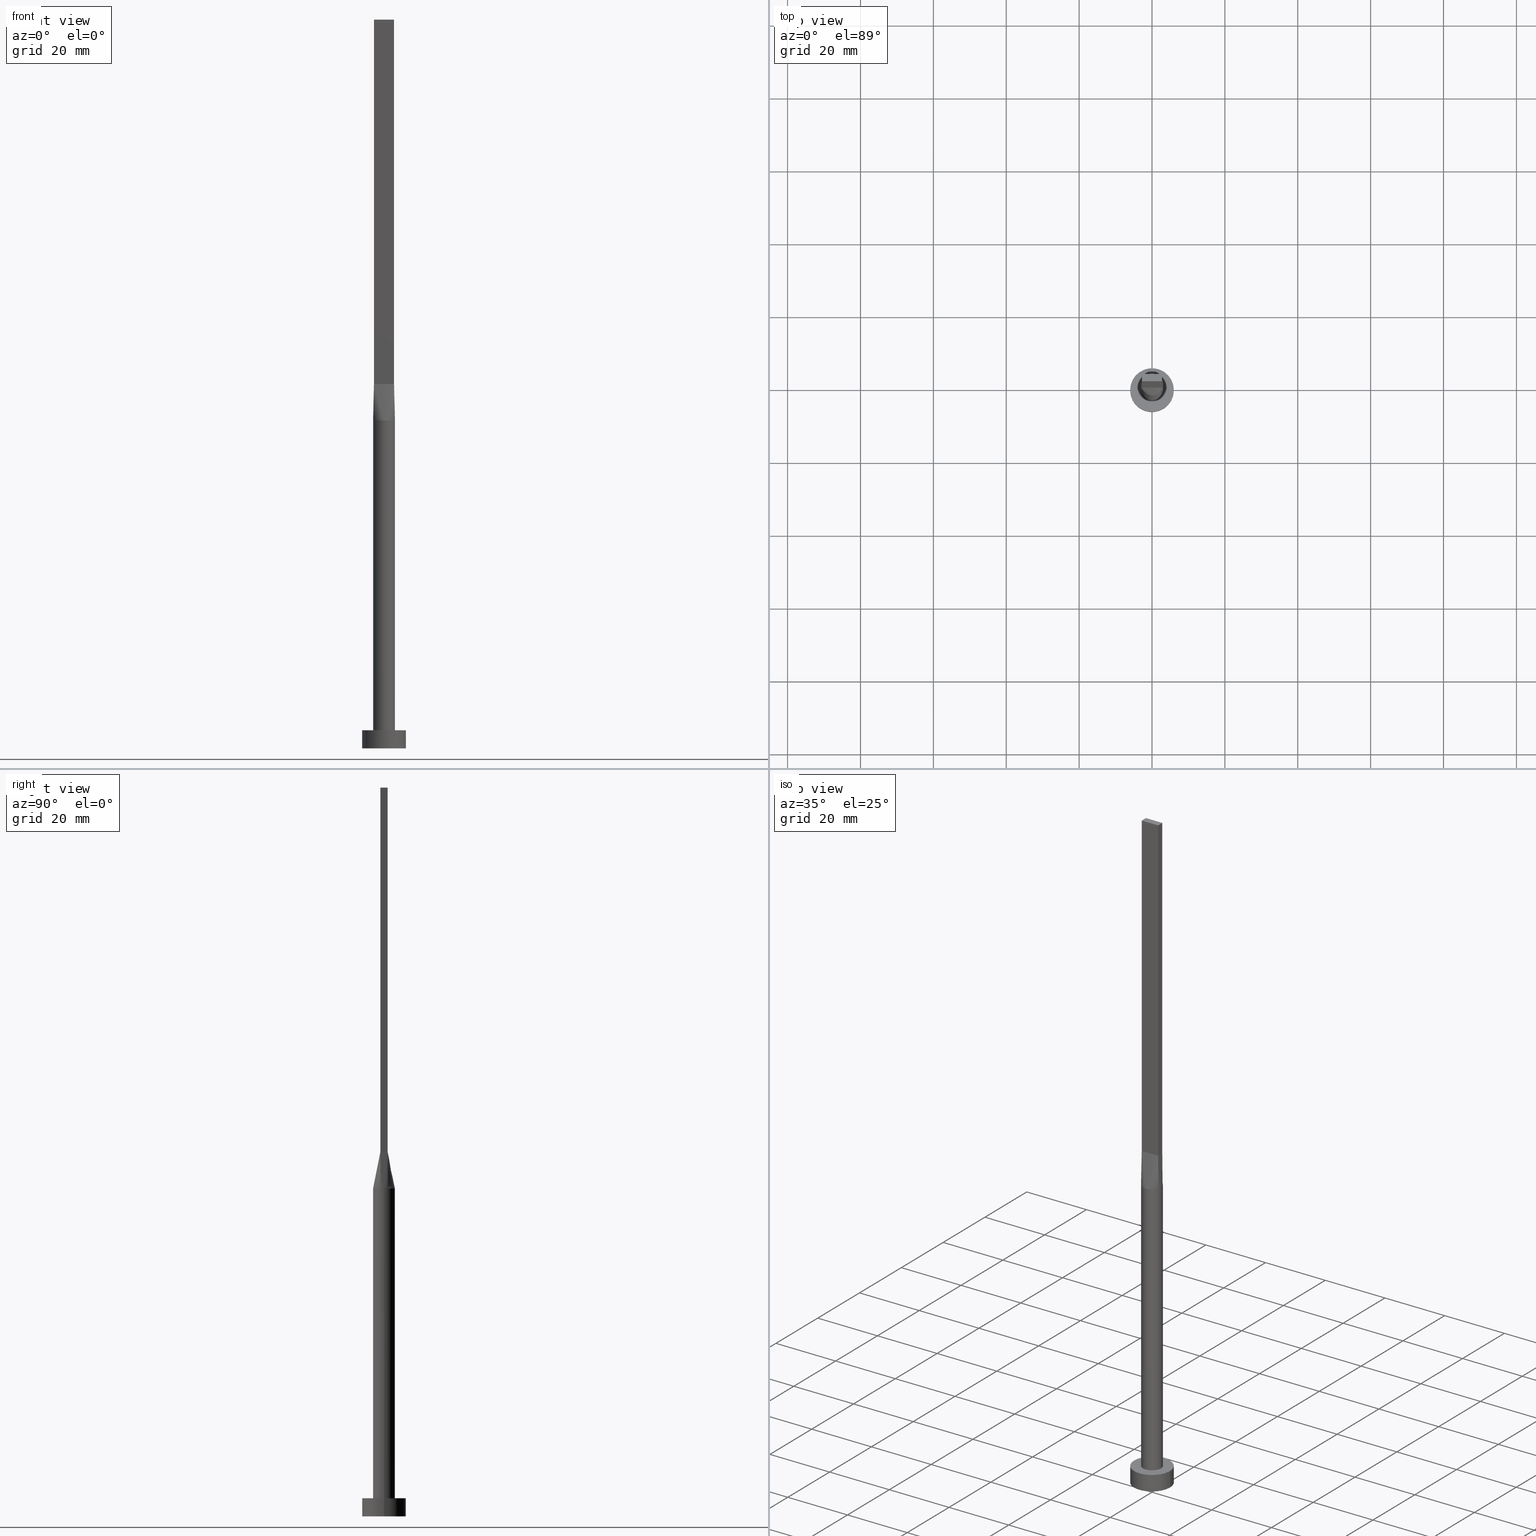
[diagram: canonical four-view strip — front | top / right | iso, engineering-drawing reading convention]
A machine part, canonical four-view strip (front | top / right | iso — engineering-drawing reading convention). The complete STEP part file that produces these views, byte-faithful:
ISO-10303-21;
HEADER;
FILE_DESCRIPTION (( 'STEP AP203' ),
    '1' );
FILE_NAME ('2b01.STEP',
    '2023-02-13T10:27:13',
    ( '' ),
    ( '' ),
    'SwSTEP 2.0',
    'SolidWorks 2019',
    '' );
FILE_SCHEMA (( 'CONFIG_CONTROL_DESIGN' ));
ENDSEC;

DATA;
#1 = CARTESIAN_POINT ( 'NONE',  ( -1.833333333333333037, -0.9999999999999995559, 100.0000000000000000 ) ) ;
#2 = VERTEX_POINT ( 'NONE', #502 ) ;
#3 = DIRECTION ( 'NONE',  ( 0.000000000000000000, 0.000000000000000000, 1.000000000000000000 ) ) ;
#4 = AXIS2_PLACEMENT_3D ( 'NONE', #381, #330, #169 ) ;
#5 = CARTESIAN_POINT ( 'NONE',  ( 3.000000000000000444, 3.673940397442060361E-16, 5.000000000000000000 ) ) ;
#6 = CC_DESIGN_PERSON_AND_ORGANIZATION_ASSIGNMENT ( #75, #323, ( #273 ) ) ;
#7 = CARTESIAN_POINT ( 'NONE',  ( 0.000000000000000000, 0.000000000000000000, 0.000000000000000000 ) ) ;
#8 = CARTESIAN_POINT ( 'NONE',  ( -3.000000000000000444, 0.3523499553598127276, 90.00000000000001421 ) ) ;
#9 = DIRECTION ( 'NONE',  ( 7.885106708985487801E-17, 1.000000000000000000, -0.000000000000000000 ) ) ;
#10 = ORIENTED_EDGE ( 'NONE', *, *, #469, .F. ) ;
#11 = CARTESIAN_POINT ( 'NONE',  ( -2.749999999999999556, 1.000000000000000000, 100.0000000000000000 ) ) ;
#12 = CARTESIAN_POINT ( 'NONE',  ( 2.819380270465311700, 1.025229189260112639, 90.00000000000001421 ) ) ;
#13 = CARTESIAN_POINT ( 'NONE',  ( -1.145833333333333259, -0.9999999999999995559, 100.0000000000000142 ) ) ;
#14 = CIRCLE ( 'NONE', #71, 3.000000000000000444 ) ;
#15 = AXIS2_PLACEMENT_3D ( 'NONE', #46, #306, #79 ) ;
#16 = DIRECTION ( 'NONE',  ( 1.000000000000000000, -7.885106708985487801E-17, 0.000000000000000000 ) ) ;
#17 = VECTOR ( 'NONE', #16, 1000.000000000000000 ) ;
#18 = DIRECTION ( 'NONE',  ( 0.000000000000000000, 0.000000000000000000, 1.000000000000000000 ) ) ;
#19 = CARTESIAN_POINT ( 'NONE',  ( 2.314486317179579533, -1.928337902455807606, 90.00000000000002842 ) ) ;
#20 = DIRECTION ( 'NONE',  ( -0.006937837988376369981, 0.002522850177591328454, 0.9999727504442450510 ) ) ;
#21 = LOCAL_TIME ( 11, 27, 13.00000000000000000, #256 ) ;
#22 = DIRECTION ( 'NONE',  ( 1.000000000000000000, 0.000000000000000000, 0.000000000000000000 ) ) ;
#23 = CARTESIAN_POINT ( 'NONE',  ( 0.000000000000000000, 0.000000000000000000, 90.00000000000001421 ) ) ;
#24 = EDGE_CURVE ( 'NONE', #445, #382, #97, .T. ) ;
#25 = CARTESIAN_POINT ( 'NONE',  ( -2.625980160873452096, 1.476334031700886396, 90.00000000000001421 ) ) ;
#26 = CARTESIAN_POINT ( 'NONE',  ( -2.784690135232655628, 1.012614594630056430, 95.00000000000000000 ) ) ;
#27 = CARTESIAN_POINT ( 'NONE',  ( -0.9166666666666644092, 1.000000000000000000, 100.0000000000000000 ) ) ;
#28 = FACE_OUTER_BOUND ( 'NONE', #215, .T. ) ;
#29 = ORIENTED_EDGE ( 'NONE', *, *, #55, .T. ) ;
#30 = EDGE_LOOP ( 'NONE', ( #99, #577, #439, #69 ) ) ;
#31 = CARTESIAN_POINT ( 'NONE',  ( 0.9166666666666685170, 1.000000000000000000, 100.0000000000000000 ) ) ;
#32 = EDGE_CURVE ( 'NONE', #519, #377, #242, .T. ) ;
#33 = ORIENTED_EDGE ( 'NONE', *, *, #443, .F. ) ;
#34 = DATE_TIME_ROLE ( 'classification_date' ) ;
#35 = CARTESIAN_POINT ( 'NONE',  ( -1.145833333333331261, 1.000000000000000000, 100.0000000000000000 ) ) ;
#36 = PLANE ( 'NONE',  #536 ) ;
#37 = LINE ( 'NONE', #433, #258 ) ;
#38 = DATE_TIME_ROLE ( 'creation_date' ) ;
#39 = CARTESIAN_POINT ( 'NONE',  ( 2.749999999999999556, 1.000000000000000000, 100.0000000000000000 ) ) ;
#40 = CARTESIAN_POINT ( 'NONE',  ( 0.3502136323054376721, 3.000000000000000444, 90.00000000000001421 ) ) ;
#41 = EDGE_LOOP ( 'NONE', ( #527, #118, #353, #403 ) ) ;
#42 = EDGE_CURVE ( 'NONE', #479, #2, #329, .T. ) ;
#43 = DIRECTION ( 'NONE',  ( -0.000000000000000000, -0.000000000000000000, -1.000000000000000000 ) ) ;
#44 = CARTESIAN_POINT ( 'NONE',  ( -1.338960936578150518, -2.706038443291638007, 90.00000000000001421 ) ) ;
#45 = ORIENTED_EDGE ( 'NONE', *, *, #59, .F. ) ;
#46 = CARTESIAN_POINT ( 'NONE',  ( 0.000000000000000000, 0.000000000000000000, 0.000000000000000000 ) ) ;
#47 = CARTESIAN_POINT ( 'NONE',  ( 1.145833333333333259, -0.9999999999999995559, 100.0000000000000000 ) ) ;
#48 = ADVANCED_FACE ( 'NONE', ( #508 ), #556, .F. ) ;
#49 = CC_DESIGN_APPROVAL ( #342, ( #554 ) ) ;
#50 = DIRECTION ( 'NONE',  ( -2.168404344971008868E-16, 1.000000000000000000, 0.000000000000000000 ) ) ;
#51 = CARTESIAN_POINT ( 'NONE',  ( 0.000000000000000000, 0.000000000000000000, 0.000000000000000000 ) ) ;
#52 = CARTESIAN_POINT ( 'NONE',  ( -2.750000000000000000, -0.9999999999999991118, 100.0000000000000000 ) ) ;
#53 = VERTEX_POINT ( 'NONE', #57 ) ;
#54 = DIRECTION ( 'NONE',  ( -0.000000000000000000, -0.000000000000000000, -1.000000000000000000 ) ) ;
#55 = EDGE_CURVE ( 'NONE', #478, #83, #261, .T. ) ;
#56 = CARTESIAN_POINT ( 'NONE',  ( 2.739088299662391979, -1.246032108968142982, 90.00000000000001421 ) ) ;
#57 = CARTESIAN_POINT ( 'NONE',  ( 3.000000000000000444, 7.514166843208536743E-18, 90.00000000000001421 ) ) ;
#58 = LINE ( 'NONE', #511, #310 ) ;
#59 = EDGE_CURVE ( 'NONE', #377, #382, #283, .T. ) ;
#60 = DIRECTION ( 'NONE',  ( 0.000000000000000000, -1.000000000000000000, 0.000000000000000000 ) ) ;
#61 = APPROVAL_ROLE ( '' ) ;
#62 = VECTOR ( 'NONE', #303, 1000.000000000000000 ) ;
#63 = CARTESIAN_POINT ( 'NONE',  ( -1.627925520694712747, 2.539128397820341831, 90.00000000000000000 ) ) ;
#64 = CARTESIAN_POINT ( 'NONE',  ( 1.604166666666668073, 1.000000000000000000, 100.0000000000000000 ) ) ;
#65 = CARTESIAN_POINT ( 'NONE',  ( -1.627925520694712747, 2.539128397820341831, 90.00000000000000000 ) ) ;
#66 = ORIENTED_EDGE ( 'NONE', *, *, #185, .F. ) ;
#67 = ADVANCED_FACE ( 'NONE', ( #197 ), #143, .T. ) ;
#68 = ORIENTED_EDGE ( 'NONE', *, *, #487, .F. ) ;
#69 = ORIENTED_EDGE ( 'NONE', *, *, #462, .T. ) ;
#70 = CARTESIAN_POINT ( 'NONE',  ( 2.314486317179579977, 1.928337902455807384, 90.00000000000002842 ) ) ;
#71 = AXIS2_PLACEMENT_3D ( 'NONE', #264, #351, #538 ) ;
#72 = VECTOR ( 'NONE', #302, 1000.000000000000000 ) ;
#73 = VERTEX_POINT ( 'NONE', #101 ) ;
#74 = LINE ( 'NONE', #262, #189 ) ;
#75 = PERSON_AND_ORGANIZATION ( #441, #92 ) ;
#76 = CARTESIAN_POINT ( 'NONE',  ( -2.819429393986302657, 1.025247261300842760, 90.00000000000001421 ) ) ;
#77 = DIRECTION ( 'NONE',  ( -1.000000000000000000, 0.000000000000000000, 0.000000000000000000 ) ) ;
#78 = FACE_OUTER_BOUND ( 'NONE', #292, .T. ) ;
#79 = DIRECTION ( 'NONE',  ( 1.000000000000000000, 0.000000000000000000, 0.000000000000000000 ) ) ;
#80 = CC_DESIGN_DATE_AND_TIME_ASSIGNMENT ( #387, #34, ( #273 ) ) ;
#81 = CARTESIAN_POINT ( 'NONE',  ( -2.520833333333332593, 1.000000000000000000, 100.0000000000000000 ) ) ;
#82 = CARTESIAN_POINT ( 'NONE',  ( -0.4583333333333333703, -0.9999999999999995559, 100.0000000000000142 ) ) ;
#83 = VERTEX_POINT ( 'NONE', #238 ) ;
#84 = B_SPLINE_CURVE_WITH_KNOTS ( 'NONE', 3,
 ( #376, #320, #514, #105, #107, #287, #473, #165, #40, #521, #385, #525, #65, #122, #489, #567, #254, #76 ),
 .UNSPECIFIED., .F., .F.,
 ( 4, 2, 2, 2, 2, 2, 2, 2, 4 ),
 ( 0.000000000000000000, 0.1249999999999998890, 0.2499999999999997780, 0.3749999999999997780, 0.4999999999999997780, 0.6249999999999997780, 0.7499999999999997780, 0.8749999999999998890, 1.000000000000000000 ),
 .UNSPECIFIED. ) ;
#85 = CARTESIAN_POINT ( 'NONE',  ( -2.819380270465311700, -1.025229189260111973, 90.00000000000001421 ) ) ;
#86 = VERTEX_POINT ( 'NONE', #317 ) ;
#87 = EDGE_CURVE ( 'NONE', #83, #478, #227, .T. ) ;
#88 = FACE_OUTER_BOUND ( 'NONE', #296, .T. ) ;
#89 = CARTESIAN_POINT ( 'NONE',  ( -3.000000000000000444, -0.3523499553598117839, 90.00000000000001421 ) ) ;
#90 = CARTESIAN_POINT ( 'NONE',  ( -2.749999999999999556, 1.000000000000000000, 200.0000000000000000 ) ) ;
#91 = CIRCLE ( 'NONE', #284, 6.000000000000000888 ) ;
#92 = ORGANIZATION ( 'NEUR�EN�', 'NEUR�EN�', '' ) ;
#93 = LINE ( 'NONE', #364, #125 ) ;
#94 = CARTESIAN_POINT ( 'NONE',  ( -2.291666666666666519, -0.9999999999999995559, 100.0000000000000000 ) ) ;
#95 = EDGE_LOOP ( 'NONE', ( #211, #551, #572, #344 ) ) ;
#96 = DIRECTION ( 'NONE',  ( -0.000000000000000000, -0.000000000000000000, -1.000000000000000000 ) ) ;
#97 = LINE ( 'NONE', #236, #269 ) ;
#98 = LINE ( 'NONE', #466, #512 ) ;
#99 = ORIENTED_EDGE ( 'NONE', *, *, #171, .T. ) ;
#100 = AXIS2_PLACEMENT_3D ( 'NONE', #102, #560, #426 ) ;
#101 = CARTESIAN_POINT ( 'NONE',  ( -2.749999999999999556, 1.000000000000000000, 100.0000000000000000 ) ) ;
#102 = CARTESIAN_POINT ( 'NONE',  ( 0.000000000000000000, 0.000000000000000000, 5.000000000000000000 ) ) ;
#103 = EDGE_CURVE ( 'NONE', #73, #235, #415, .T. ) ;
#104 = CARTESIAN_POINT ( 'NONE',  ( -2.749999999999999556, 1.000000000000000000, 100.0000000000000000 ) ) ;
#105 = CARTESIAN_POINT ( 'NONE',  ( 2.314486317179579977, 1.928337902455807384, 90.00000000000002842 ) ) ;
#106 = CARTESIAN_POINT ( 'NONE',  ( -0.6998073349918608743, 2.936959335800557014, 90.00000000000000000 ) ) ;
#107 = CARTESIAN_POINT ( 'NONE',  ( 2.115507543051069916, 2.149870311632976705, 90.00000000000001421 ) ) ;
#108 = ORIENTED_EDGE ( 'NONE', *, *, #581, .T. ) ;
#109 = VECTOR ( 'NONE', #228, 1000.000000000000000 ) ;
#110 = CARTESIAN_POINT ( 'NONE',  ( 1.145833333333335036, 1.000000000000000000, 100.0000000000000000 ) ) ;
#111 = ORIENTED_EDGE ( 'NONE', *, *, #289, .T. ) ;
#112 = DATE_AND_TIME ( #328, #121 ) ;
#113 = VERTEX_POINT ( 'NONE', #504 ) ;
#114 = ORIENTED_EDGE ( 'NONE', *, *, #487, .T. ) ;
#115 = CC_DESIGN_PERSON_AND_ORGANIZATION_ASSIGNMENT ( #400, #349, ( #510 ) ) ;
#116 = CARTESIAN_POINT ( 'NONE',  ( 2.520833333333333037, 1.000000000000000000, 100.0000000000000000 ) ) ;
#117 = ORIENTED_EDGE ( 'NONE', *, *, #571, .T. ) ;
#118 = ORIENTED_EDGE ( 'NONE', *, *, #150, .F. ) ;
#119 = CARTESIAN_POINT ( 'NONE',  ( -0.3502136323054376721, 2.999999999999999112, 90.00000000000002842 ) ) ;
#120 = VECTOR ( 'NONE', #492, 1000.000000000000000 ) ;
#121 = LOCAL_TIME ( 11, 27, 13.00000000000000000, #159 ) ;
#122 = CARTESIAN_POINT ( 'NONE',  ( -2.115507543051069916, 2.149870311632977593, 90.00000000000001421 ) ) ;
#123 = PERSON_AND_ORGANIZATION_ROLE ( 'design_supplier' ) ;
#124 = CARTESIAN_POINT ( 'NONE',  ( -2.784690135232656072, -1.012614594630055764, 95.00000000000000000 ) ) ;
#125 = VECTOR ( 'NONE', #77, 1000.000000000000000 ) ;
#126 = EDGE_CURVE ( 'NONE', #519, #235, #98, .T. ) ;
#127 = ORIENTED_EDGE ( 'NONE', *, *, #366, .T. ) ;
#128 = CARTESIAN_POINT ( 'NONE',  ( -0.6998073349918614294, -2.936959335800558346, 90.00000000000001421 ) ) ;
#129 = ORIENTED_EDGE ( 'NONE', *, *, #450, .T. ) ;
#130 = DIRECTION ( 'NONE',  ( -1.000000000000000000, 7.885106708985487801E-17, 0.000000000000000000 ) ) ;
#131 = ADVANCED_FACE ( 'NONE', ( #368 ), #501, .T. ) ;
#132 = DIRECTION ( 'NONE',  ( 0.000000000000000000, 0.000000000000000000, 1.000000000000000000 ) ) ;
#133 = CARTESIAN_POINT ( 'NONE',  ( -2.314486317179578645, -1.928337902455806496, 90.00000000000001421 ) ) ;
#134 = EDGE_LOOP ( 'NONE', ( #322, #114, #528, #33 ) ) ;
#135 = CARTESIAN_POINT ( 'NONE',  ( -2.749999999999999556, 0.3333333333333337034, 100.0000000000000000 ) ) ;
#136 = LINE ( 'NONE', #90, #62 ) ;
#137 = ORIENTED_EDGE ( 'NONE', *, *, #436, .F. ) ;
#138 = COORDINATED_UNIVERSAL_TIME_OFFSET ( 1, 0, .AHEAD. ) ;
#139 = AXIS2_PLACEMENT_3D ( 'NONE', #234, #9, #130 ) ;
#140 = CC_DESIGN_SECURITY_CLASSIFICATION ( #273, ( #409 ) ) ;
#141 = ADVANCED_BREP_SHAPE_REPRESENTATION ( '2b01', ( #465, #15 ), #187 ) ;
#142 = EDGE_CURVE ( 'NONE', #235, #224, #399, .T. ) ;
#143 = CYLINDRICAL_SURFACE ( 'NONE', #354, 3.000000000000000444 ) ;
#144 = CARTESIAN_POINT ( 'NONE',  ( 2.520833333333333037, -0.9999999999999995559, 100.0000000000000000 ) ) ;
#145 = ORIENTED_EDGE ( 'NONE', *, *, #185, .T. ) ;
#146 = CARTESIAN_POINT ( 'NONE',  ( 2.819380270465311700, 1.025229189260113083, 90.00000000000001421 ) ) ;
#147 = CARTESIAN_POINT ( 'NONE',  ( 2.749999999999999556, 1.000000000000000000, 200.0000000000000000 ) ) ;
#148 = VECTOR ( 'NONE', #50, 1000.000000000000000 ) ;
#149 = CC_DESIGN_APPROVAL ( #518, ( #273 ) ) ;
#150 = EDGE_CURVE ( 'NONE', #333, #172, #579, .T. ) ;
#151 = CARTESIAN_POINT ( 'NONE',  ( 2.750000000000000000, -0.9999999999999997780, 200.0000000000000000 ) ) ;
#152 = PRODUCT_DEFINITION_SHAPE ( 'NONE', 'NONE',  #554 ) ;
#153 = CARTESIAN_POINT ( 'NONE',  ( -2.749999999999999556, 1.000000000000000000, 200.0000000000000000 ) ) ;
#154 = DIRECTION ( 'NONE',  ( -0.000000000000000000, -0.000000000000000000, -1.000000000000000000 ) ) ;
#155 = CARTESIAN_POINT ( 'NONE',  ( 0.000000000000000000, 0.000000000000000000, 5.000000000000000000 ) ) ;
#156 = CARTESIAN_POINT ( 'NONE',  ( -6.000000000000000888, 0.000000000000000000, 5.000000000000000000 ) ) ;
#157 = VERTEX_POINT ( 'NONE', #220 ) ;
#158 = DIRECTION ( 'NONE',  ( 0.000000000000000000, 0.000000000000000000, 1.000000000000000000 ) ) ;
#159 = COORDINATED_UNIVERSAL_TIME_OFFSET ( 1, 0, .AHEAD. ) ;
#160 = CIRCLE ( 'NONE', #509, 3.000000000000000444 ) ;
#161 = ADVANCED_FACE ( 'NONE', ( #78 ), #416, .T. ) ;
#162 = AXIS2_PLACEMENT_3D ( 'NONE', #280, #319, #559 ) ;
#163 = ORIENTED_EDGE ( 'NONE', *, *, #42, .F. ) ;
#164 = DATE_AND_TIME ( #384, #476 ) ;
#165 = CARTESIAN_POINT ( 'NONE',  ( 0.6998073349918605413, 2.936959335800557014, 89.99999999999997158 ) ) ;
#166 = EDGE_LOOP ( 'NONE', ( #176, #117, #455, #576, #545 ) ) ;
#167 = VERTEX_POINT ( 'NONE', #499 ) ;
#168 = CARTESIAN_POINT ( 'NONE',  ( -1.833333333333331261, 1.000000000000000000, 100.0000000000000000 ) ) ;
#169 = DIRECTION ( 'NONE',  ( 1.000000000000000000, 0.000000000000000000, -0.000000000000000000 ) ) ;
#170 = CARTESIAN_POINT ( 'NONE',  ( -2.750000000000000000, -0.3333333333333326487, 100.0000000000000000 ) ) ;
#171 = EDGE_CURVE ( 'NONE', #333, #391, #93, .T. ) ;
#172 = VERTEX_POINT ( 'NONE', #39 ) ;
#173 = CARTESIAN_POINT ( 'NONE',  ( -0.3502136323054380052, -3.000000000000000888, 90.00000000000002842 ) ) ;
#174 = ADVANCED_FACE ( 'NONE', ( #438 ), #380, .T. ) ;
#175 = CARTESIAN_POINT ( 'NONE',  ( 0.4583333333333332593, -0.9999999999999995559, 100.0000000000000000 ) ) ;
#176 = ORIENTED_EDGE ( 'NONE', *, *, #231, .T. ) ;
#177 = DIRECTION ( 'NONE',  ( -1.000000000000000000, 0.000000000000000000, 0.000000000000000000 ) ) ;
#178 = CARTESIAN_POINT ( 'NONE',  ( 0.2291666666666665464, -0.9999999999999995559, 100.0000000000000142 ) ) ;
#179 = ORIENTED_EDGE ( 'NONE', *, *, #372, .F. ) ;
#180 = CARTESIAN_POINT ( 'NONE',  ( 0.000000000000000000, 0.000000000000000000, 90.00000000000001421 ) ) ;
#181 = CARTESIAN_POINT ( 'NONE',  ( -2.750000000000000000, -0.6666666666666658525, 100.0000000000000000 ) ) ;
#182 = CARTESIAN_POINT ( 'NONE',  ( 0.000000000000000000, 0.000000000000000000, 90.00000000000001421 ) ) ;
#183 = ORIENTED_EDGE ( 'NONE', *, *, #318, .T. ) ;
#184 = DIRECTION ( 'NONE',  ( -2.168404344971009854E-16, -1.000000000000000000, 0.000000000000000000 ) ) ;
#185 = EDGE_CURVE ( 'NONE', #167, #83, #74, .T. ) ;
#186 = DATE_AND_TIME ( #418, #363 ) ;
#187 =( GEOMETRIC_REPRESENTATION_CONTEXT ( 3 ) GLOBAL_UNCERTAINTY_ASSIGNED_CONTEXT ( ( #505 ) ) GLOBAL_UNIT_ASSIGNED_CONTEXT ( ( #270, #304, #325 ) ) REPRESENTATION_CONTEXT ( 'NONE', 'WORKASPACE' ) );
#188 = DIRECTION ( 'NONE',  ( 0.000000000000000000, 0.000000000000000000, 1.000000000000000000 ) ) ;
#189 = VECTOR ( 'NONE', #249, 1000.000000000000000 ) ;
#190 = CARTESIAN_POINT ( 'NONE',  ( 2.291666666666666519, -0.9999999999999995559, 100.0000000000000000 ) ) ;
#191 = DIRECTION ( 'NONE',  ( 0.000000000000000000, -0.000000000000000000, -1.000000000000000000 ) ) ;
#192 = DIRECTION ( 'NONE',  ( 2.168404344971008868E-16, -1.000000000000000000, 0.000000000000000000 ) ) ;
#193 = ORIENTED_EDGE ( 'NONE', *, *, #395, .F. ) ;
#194 = ADVANCED_FACE ( 'NONE', ( #474 ), #428, .T. ) ;
#195 = DIRECTION ( 'NONE',  ( 0.006937837988376413349, -0.002522850177591350138, 0.9999727504442450510 ) ) ;
#196 = AXIS2_PLACEMENT_3D ( 'NONE', #153, #431, #314 ) ;
#197 = FACE_OUTER_BOUND ( 'NONE', #413, .T. ) ;
#198 = PLANE ( 'NONE',  #350 ) ;
#199 = DIRECTION ( 'NONE',  ( -0.000000000000000000, -0.000000000000000000, -1.000000000000000000 ) ) ;
#200 = PERSON_AND_ORGANIZATION ( #441, #92 ) ;
#201 = DIRECTION ( 'NONE',  ( 0.000000000000000000, 0.000000000000000000, 1.000000000000000000 ) ) ;
#202 = PLANE ( 'NONE',  #4 ) ;
#203 = ORIENTED_EDGE ( 'NONE', *, *, #289, .F. ) ;
#204 = PERSON_AND_ORGANIZATION ( #441, #92 ) ;
#205 = ORIENTED_EDGE ( 'NONE', *, *, #450, .F. ) ;
#206 = AXIS2_PLACEMENT_3D ( 'NONE', #151, #244, #192 ) ;
#207 = EDGE_LOOP ( 'NONE', ( #331, #108, #129, #406 ) ) ;
#208 = CC_DESIGN_PERSON_AND_ORGANIZATION_ASSIGNMENT ( #480, #210, ( #409 ) ) ;
#209 = ORIENTED_EDGE ( 'NONE', *, *, #87, .T. ) ;
#210 = PERSON_AND_ORGANIZATION_ROLE ( 'creator' ) ;
#211 = ORIENTED_EDGE ( 'NONE', *, *, #469, .T. ) ;
#212 = CARTESIAN_POINT ( 'NONE',  ( 3.000000000000000444, 0.3523499553598119505, 90.00000000000001421 ) ) ;
#213 = MECHANICAL_CONTEXT ( 'NONE', #453, 'mechanical' ) ;
#214 = AXIS2_PLACEMENT_3D ( 'NONE', #182, #132, #356 ) ;
#215 = EDGE_LOOP ( 'NONE', ( #255, #299 ) ) ;
#216 = CARTESIAN_POINT ( 'NONE',  ( -2.749999999999999556, 1.000000000000000000, 100.0000000000000000 ) ) ;
#217 = LINE ( 'NONE', #401, #109 ) ;
#218 = CARTESIAN_POINT ( 'NONE',  ( -2.750000000000000000, -0.9999999999999993339, 100.0000000000000000 ) ) ;
#219 = CARTESIAN_POINT ( 'NONE',  ( 2.749999999999999556, 1.000000000000000000, 100.0000000000000000 ) ) ;
#220 = CARTESIAN_POINT ( 'NONE',  ( 6.000000000000000888, 7.347880794884120722E-16, 5.000000000000000000 ) ) ;
#221 = CARTESIAN_POINT ( 'NONE',  ( 6.000000000000000888, 7.347880794884120722E-16, 5.000000000000000000 ) ) ;
#222 = EDGE_CURVE ( 'NONE', #382, #172, #493, .T. ) ;
#223 = CARTESIAN_POINT ( 'NONE',  ( 0.6998073349918603192, -2.936959335800557902, 90.00000000000001421 ) ) ;
#224 = VERTEX_POINT ( 'NONE', #495 ) ;
#225 = CIRCLE ( 'NONE', #498, 3.000000000000000444 ) ;
#226 = CARTESIAN_POINT ( 'NONE',  ( 2.749999999999999556, 1.000000000000000000, 200.0000000000000000 ) ) ;
#227 = CIRCLE ( 'NONE', #558, 3.000000000000000444 ) ;
#228 = DIRECTION ( 'NONE',  ( -2.168404344971009854E-16, -1.000000000000000000, 0.000000000000000000 ) ) ;
#229 = ORIENTED_EDGE ( 'NONE', *, *, #103, .F. ) ;
#230 = PERSON_AND_ORGANIZATION ( #441, #92 ) ;
#231 = EDGE_CURVE ( 'NONE', #445, #53, #14, .T. ) ;
#232 = DIRECTION ( 'NONE',  ( 0.000000000000000000, 0.000000000000000000, 1.000000000000000000 ) ) ;
#233 = CARTESIAN_POINT ( 'NONE',  ( 2.936168591633195657, 0.7040613060484338659, 90.00000000000002842 ) ) ;
#234 = CARTESIAN_POINT ( 'NONE',  ( -2.750000000000000000, -0.9999999999999993339, 200.0000000000000000 ) ) ;
#235 = VERTEX_POINT ( 'NONE', #533 ) ;
#236 = CARTESIAN_POINT ( 'NONE',  ( 2.784690135232656072, -1.012614594630056208, 95.00000000000000000 ) ) ;
#237 = DIRECTION ( 'NONE',  ( 1.000000000000000000, -7.885106708985487801E-17, 0.000000000000000000 ) ) ;
#238 = CARTESIAN_POINT ( 'NONE',  ( -3.000000000000000444, 0.000000000000000000, 5.000000000000000000 ) ) ;
#239 = ADVANCED_FACE ( 'NONE', ( #88 ), #36, .F. ) ;
#240 = CARTESIAN_POINT ( 'NONE',  ( 2.750000000000000000, -0.9999999999999997780, 100.0000000000000000 ) ) ;
#241 = CYLINDRICAL_SURFACE ( 'NONE', #362, 6.000000000000000888 ) ;
#242 = LINE ( 'NONE', #313, #17 ) ;
#243 = FACE_OUTER_BOUND ( 'NONE', #334, .T. ) ;
#244 = DIRECTION ( 'NONE',  ( -1.000000000000000000, -2.168404344971008868E-16, 0.000000000000000000 ) ) ;
#245 = DATE_AND_TIME ( #471, #485 ) ;
#246 = LINE ( 'NONE', #557, #457 ) ;
#247 = CIRCLE ( 'NONE', #100, 6.000000000000000888 ) ;
#248 = APPROVAL_PERSON_ORGANIZATION ( #517, #518, #573 ) ;
#249 = DIRECTION ( 'NONE',  ( -0.000000000000000000, -0.000000000000000000, -1.000000000000000000 ) ) ;
#250 = APPROVAL_DATE_TIME ( #112, #307 ) ;
#251 = PLANE ( 'NONE',  #196 ) ;
#252 = COORDINATED_UNIVERSAL_TIME_OFFSET ( 1, 0, .AHEAD. ) ;
#253 = PRODUCT_RELATED_PRODUCT_CATEGORY ( 'detail', '', ( #510 ) ) ;
#254 = CARTESIAN_POINT ( 'NONE',  ( -2.739088299662392423, 1.246032108968142316, 90.00000000000002842 ) ) ;
#255 = ORIENTED_EDGE ( 'NONE', *, *, #355, .T. ) ;
#256 = COORDINATED_UNIVERSAL_TIME_OFFSET ( 1, 0, .AHEAD. ) ;
#257 = CARTESIAN_POINT ( 'NONE',  ( 0.4583333333333349247, 1.000000000000000000, 100.0000000000000000 ) ) ;
#258 = VECTOR ( 'NONE', #295, 1000.000000000000000 ) ;
#259 = CARTESIAN_POINT ( 'NONE',  ( 2.115507543051069916, 2.149870311632976705, 90.00000000000001421 ) ) ;
#260 = EDGE_CURVE ( 'NONE', #113, #167, #160, .T. ) ;
#261 = CIRCLE ( 'NONE', #162, 3.000000000000000444 ) ;
#262 = CARTESIAN_POINT ( 'NONE',  ( -3.000000000000000444, 0.000000000000000000, 90.00000000000001421 ) ) ;
#263 = SHAPE_DEFINITION_REPRESENTATION ( #152, #141 ) ;
#264 = CARTESIAN_POINT ( 'NONE',  ( 0.000000000000000000, 0.000000000000000000, 90.00000000000001421 ) ) ;
#265 = CARTESIAN_POINT ( 'NONE',  ( -2.749999999999999556, 1.000000000000000000, 200.0000000000000000 ) ) ;
#266 = CARTESIAN_POINT ( 'NONE',  ( 3.000000000000000444, -0.3523499553598126721, 90.00000000000001421 ) ) ;
#267 = CARTESIAN_POINT ( 'NONE',  ( 2.936168591633194769, -0.7040613060484341990, 89.99999999999998579 ) ) ;
#268 = LINE ( 'NONE', #410, #148 ) ;
#269 = VECTOR ( 'NONE', #20, 1000.000000000000114 ) ;
#270 =( LENGTH_UNIT ( ) NAMED_UNIT ( * ) SI_UNIT ( .MILLI., .METRE. ) );
#271 = CARTESIAN_POINT ( 'NONE',  ( 0.3502136323054372835, -3.000000000000000444, 90.00000000000001421 ) ) ;
#272 = CARTESIAN_POINT ( 'NONE',  ( 0.000000000000000000, 0.000000000000000000, 0.000000000000000000 ) ) ;
#273 = SECURITY_CLASSIFICATION ( '', '', #568 ) ;
#274 = CARTESIAN_POINT ( 'NONE',  ( -2.749999999999999556, 0.6666666666666668517, 100.0000000000000000 ) ) ;
#275 = DIRECTION ( 'NONE',  ( 1.000000000000000000, 0.000000000000000000, 0.000000000000000000 ) ) ;
#276 = ADVANCED_FACE ( 'NONE', ( #463 ), #552, .T. ) ;
#277 = DIRECTION ( 'NONE',  ( 0.000000000000000000, 0.000000000000000000, 1.000000000000000000 ) ) ;
#278 = CARTESIAN_POINT ( 'NONE',  ( 2.750000000000000000, -0.6666666666666666297, 100.0000000000000000 ) ) ;
#279 = CARTESIAN_POINT ( 'NONE',  ( -1.604166666666666519, -0.9999999999999995559, 100.0000000000000000 ) ) ;
#280 = CARTESIAN_POINT ( 'NONE',  ( 0.000000000000000000, 0.000000000000000000, 5.000000000000000000 ) ) ;
#281 = DIRECTION ( 'NONE',  ( -0.000000000000000000, -0.000000000000000000, -1.000000000000000000 ) ) ;
#282 = EDGE_CURVE ( 'NONE', #157, #357, #91, .T. ) ;
#283 = LINE ( 'NONE', #427, #537 ) ;
#284 = AXIS2_PLACEMENT_3D ( 'NONE', #506, #158, #470 ) ;
#285 = CARTESIAN_POINT ( 'NONE',  ( 0.000000000000000000, 0.000000000000000000, 90.00000000000001421 ) ) ;
#286 = CARTESIAN_POINT ( 'NONE',  ( 2.625980160873452984, -1.476334031700886618, 90.00000000000002842 ) ) ;
#287 = CARTESIAN_POINT ( 'NONE',  ( 1.627925520694712080, 2.539128397820340943, 90.00000000000001421 ) ) ;
#288 = CARTESIAN_POINT ( 'NONE',  ( 2.291666666666666963, 1.000000000000000000, 100.0000000000000000 ) ) ;
#289 = EDGE_CURVE ( 'NONE', #167, #224, #225, .T. ) ;
#290 = CC_DESIGN_APPROVAL ( #307, ( #409 ) ) ;
#291 = DIRECTION ( 'NONE',  ( -1.000000000000000000, 0.000000000000000000, 0.000000000000000000 ) ) ;
#292 = EDGE_LOOP ( 'NONE', ( #335, #111, #315, #229, #68 ) ) ;
#293 = VECTOR ( 'NONE', #184, 1000.000000000000000 ) ;
#294 = ORIENTED_EDGE ( 'NONE', *, *, #126, .F. ) ;
#295 = DIRECTION ( 'NONE',  ( -0.000000000000000000, -0.000000000000000000, -1.000000000000000000 ) ) ;
#296 = EDGE_LOOP ( 'NONE', ( #163, #205 ) ) ;
#297 = AXIS2_PLACEMENT_3D ( 'NONE', #23, #199, #291 ) ;
#298 = VECTOR ( 'NONE', #345, 1000.000000000000000 ) ;
#299 = ORIENTED_EDGE ( 'NONE', *, *, #282, .T. ) ;
#300 = PLANE ( 'NONE',  #139 ) ;
#301 = ORIENTED_EDGE ( 'NONE', *, *, #436, .T. ) ;
#302 = DIRECTION ( 'NONE',  ( -0.000000000000000000, -0.000000000000000000, -1.000000000000000000 ) ) ;
#303 = DIRECTION ( 'NONE',  ( -0.000000000000000000, -0.000000000000000000, -1.000000000000000000 ) ) ;
#304 =( NAMED_UNIT ( * ) PLANE_ANGLE_UNIT ( ) SI_UNIT ( $, .RADIAN. ) );
#305 = CARTESIAN_POINT ( 'NONE',  ( 0.9166666666666665186, -0.9999999999999995559, 100.0000000000000000 ) ) ;
#306 = DIRECTION ( 'NONE',  ( 0.000000000000000000, 0.000000000000000000, 1.000000000000000000 ) ) ;
#307 = APPROVAL ( #378, 'NEUR�EN�' ) ;
#308 = DESIGN_CONTEXT ( 'detailed design', #312, 'design' ) ;
#309 = CARTESIAN_POINT ( 'NONE',  ( 2.115507543051068140, -2.149870311632976705, 89.99999999999997158 ) ) ;
#310 = VECTOR ( 'NONE', #237, 1000.000000000000000 ) ;
#311 = ORIENTED_EDGE ( 'NONE', *, *, #87, .F. ) ;
#312 = APPLICATION_CONTEXT ( 'configuration controlled 3d designs of mechanical parts and assemblies' ) ;
#313 = CARTESIAN_POINT ( 'NONE',  ( -2.750000000000000000, -0.9999999999999993339, 200.0000000000000000 ) ) ;
#314 = DIRECTION ( 'NONE',  ( 2.168404344971010101E-16, 1.000000000000000000, 0.000000000000000000 ) ) ;
#315 = ORIENTED_EDGE ( 'NONE', *, *, #142, .F. ) ;
#316 = DIRECTION ( 'NONE',  ( 1.000000000000000000, 0.000000000000000000, 0.000000000000000000 ) ) ;
#317 = CARTESIAN_POINT ( 'NONE',  ( 2.819412401233197141, 1.025240989080170806, 90.00000000000001421 ) ) ;
#318 = EDGE_CURVE ( 'NONE', #235, #382, #58, .T. ) ;
#319 = DIRECTION ( 'NONE',  ( 0.000000000000000000, 0.000000000000000000, 1.000000000000000000 ) ) ;
#320 = CARTESIAN_POINT ( 'NONE',  ( 2.739088299662392867, 1.246032108968142538, 90.00000000000002842 ) ) ;
#321 = ADVANCED_FACE ( 'NONE', ( #326 ), #241, .T. ) ;
#322 = ORIENTED_EDGE ( 'NONE', *, *, #372, .T. ) ;
#323 = PERSON_AND_ORGANIZATION_ROLE ( 'classification_officer' ) ;
#324 = CARTESIAN_POINT ( 'NONE',  ( -2.291666666666665186, 1.000000000000000000, 100.0000000000000000 ) ) ;
#325 =( NAMED_UNIT ( * ) SI_UNIT ( $, .STERADIAN. ) SOLID_ANGLE_UNIT ( ) );
#326 = FACE_OUTER_BOUND ( 'NONE', #404, .T. ) ;
#327 = ORIENTED_EDGE ( 'NONE', *, *, #500, .T. ) ;
#328 = CALENDAR_DATE ( 2023, 13, 2 ) ;
#329 = CIRCLE ( 'NONE', #422, 6.000000000000000888 ) ;
#330 = DIRECTION ( 'NONE',  ( 0.000000000000000000, 0.000000000000000000, 1.000000000000000000 ) ) ;
#331 = ORIENTED_EDGE ( 'NONE', *, *, #282, .F. ) ;
#332 = ADVANCED_FACE ( 'NONE', ( #243 ), #198, .F. ) ;
#333 = VERTEX_POINT ( 'NONE', #147 ) ;
#334 = EDGE_LOOP ( 'NONE', ( #327, #137, #347, #570 ) ) ;
#335 = ORIENTED_EDGE ( 'NONE', *, *, #260, .T. ) ;
#336 = CARTESIAN_POINT ( 'NONE',  ( 0.6998073349918605413, 2.936959335800557014, 89.99999999999997158 ) ) ;
#337 = AXIS2_PLACEMENT_3D ( 'NONE', #367, #201, #564 ) ;
#338 = APPROVAL_PERSON_ORGANIZATION ( #230, #342, #546 ) ;
#339 = CARTESIAN_POINT ( 'NONE',  ( -2.936168591633195657, -0.7040613060484334218, 90.00000000000002842 ) ) ;
#340 = DIRECTION ( 'NONE',  ( -0.006937837988376369981, -0.002522850177591328454, -0.9999727504442450510 ) ) ;
#341 = FACE_OUTER_BOUND ( 'NONE', #207, .T. ) ;
#342 = APPROVAL ( #414, 'NEUR�EN�' ) ;
#343 = CARTESIAN_POINT ( 'NONE',  ( 2.750000000000000000, -0.9999999999999997780, 100.0000000000000000 ) ) ;
#344 = ORIENTED_EDGE ( 'NONE', *, *, #142, .T. ) ;
#345 = DIRECTION ( 'NONE',  ( -0.000000000000000000, -0.000000000000000000, -1.000000000000000000 ) ) ;
#346 = LINE ( 'NONE', #412, #408 ) ;
#347 = ORIENTED_EDGE ( 'NONE', *, *, #171, .F. ) ;
#348 = PERSON_AND_ORGANIZATION ( #441, #92 ) ;
#349 = PERSON_AND_ORGANIZATION_ROLE ( 'design_owner' ) ;
#350 = AXIS2_PLACEMENT_3D ( 'NONE', #421, #60, #191 ) ;
#351 = DIRECTION ( 'NONE',  ( 0.000000000000000000, 0.000000000000000000, 1.000000000000000000 ) ) ;
#352 = CARTESIAN_POINT ( 'NONE',  ( 1.338960936578149630, -2.706038443291638007, 90.00000000000002842 ) ) ;
#353 = ORIENTED_EDGE ( 'NONE', *, *, #462, .F. ) ;
#354 = AXIS2_PLACEMENT_3D ( 'NONE', #549, #96, #373 ) ;
#355 = EDGE_CURVE ( 'NONE', #357, #157, #247, .T. ) ;
#356 = DIRECTION ( 'NONE',  ( 1.000000000000000000, 0.000000000000000000, 0.000000000000000000 ) ) ;
#357 = VERTEX_POINT ( 'NONE', #156 ) ;
#358 = CARTESIAN_POINT ( 'NONE',  ( 2.819380270465311700, -1.025229189260113083, 90.00000000000001421 ) ) ;
#359 = FACE_OUTER_BOUND ( 'NONE', #95, .T. ) ;
#360 = CARTESIAN_POINT ( 'NONE',  ( 0.000000000000000000, 0.000000000000000000, 90.00000000000001421 ) ) ;
#361 = DIRECTION ( 'NONE',  ( -0.000000000000000000, -0.000000000000000000, -1.000000000000000000 ) ) ;
#362 = AXIS2_PLACEMENT_3D ( 'NONE', #369, #281, #464 ) ;
#363 = LOCAL_TIME ( 11, 27, 13.00000000000000000, #138 ) ;
#364 = CARTESIAN_POINT ( 'NONE',  ( 2.749999999999999556, 1.000000000000000000, 200.0000000000000000 ) ) ;
#365 = COORDINATED_UNIVERSAL_TIME_OFFSET ( 1, 0, .AHEAD. ) ;
#366 = EDGE_CURVE ( 'NONE', #357, #479, #246, .T. ) ;
#367 = CARTESIAN_POINT ( 'NONE',  ( 0.000000000000000000, 0.000000000000000000, 200.0000000000000000 ) ) ;
#368 = FACE_OUTER_BOUND ( 'NONE', #134, .T. ) ;
#369 = CARTESIAN_POINT ( 'NONE',  ( 0.000000000000000000, 0.000000000000000000, 5.000000000000000000 ) ) ;
#370 = VECTOR ( 'NONE', #195, 1000.000000000000114 ) ;
#371 = APPROVAL_PERSON_ORGANIZATION ( #200, #307, #61 ) ;
#372 = EDGE_CURVE ( 'NONE', #86, #113, #84, .T. ) ;
#373 = DIRECTION ( 'NONE',  ( -1.000000000000000000, 0.000000000000000000, 0.000000000000000000 ) ) ;
#374 = PERSON_AND_ORGANIZATION_ROLE ( 'creator' ) ;
#375 = LINE ( 'NONE', #26, #370 ) ;
#376 = CARTESIAN_POINT ( 'NONE',  ( 2.819412401233197141, 1.025240989080170806, 90.00000000000001421 ) ) ;
#377 = VERTEX_POINT ( 'NONE', #397 ) ;
#378 = APPROVAL_STATUS ( 'not_yet_approved' ) ;
#379 = CARTESIAN_POINT ( 'NONE',  ( 0.2291666666666679342, 1.000000000000000000, 100.0000000000000142 ) ) ;
#380 = B_SPLINE_SURFACE_WITH_KNOTS ( 'NONE', 3, 1, ( 
 ( #358, #550 ),
 ( #267, #278 ),
 ( #266, #444 ),
 ( #212, #460 ),
 ( #233, #392 ),
 ( #12, #523 ) ),
 .UNSPECIFIED., .F., .F., .F.,
 ( 4, 2, 4 ),
 ( 2, 2 ),
 ( 0.000000000000000000, 0.5000000000000000000, 1.000000000000000000 ),
 ( 0.000000000000000000, 1.000000000000000000 ),
 .UNSPECIFIED. ) ;
#381 = CARTESIAN_POINT ( 'NONE',  ( 0.000000000000000000, 0.000000000000000000, 5.000000000000000000 ) ) ;
#382 = VERTEX_POINT ( 'NONE', #343 ) ;
#383 = ORIENTED_EDGE ( 'NONE', *, *, #260, .F. ) ;
#384 = CALENDAR_DATE ( 2023, 13, 2 ) ;
#385 = CARTESIAN_POINT ( 'NONE',  ( -0.6998073349918608743, 2.936959335800557014, 90.00000000000000000 ) ) ;
#386 = ORIENTED_EDGE ( 'NONE', *, *, #395, .T. ) ;
#387 = DATE_AND_TIME ( #477, #21 ) ;
#388 = CARTESIAN_POINT ( 'NONE',  ( 1.627925520694712080, 2.539128397820340943, 90.00000000000001421 ) ) ;
#389 = FACE_BOUND ( 'NONE', #522, .T. ) ;
#390 = CARTESIAN_POINT ( 'NONE',  ( 1.338960936578149630, 2.706038443291637563, 90.00000000000000000 ) ) ;
#391 = VERTEX_POINT ( 'NONE', #265 ) ;
#392 = CARTESIAN_POINT ( 'NONE',  ( 2.749999999999999556, 0.6666666666666666297, 100.0000000000000000 ) ) ;
#393 = AXIS2_PLACEMENT_3D ( 'NONE', #272, #3, #275 ) ;
#394 = CARTESIAN_POINT ( 'NONE',  ( -2.819380270465311700, 1.025229189260112861, 90.00000000000001421 ) ) ;
#395 = EDGE_CURVE ( 'NONE', #53, #478, #37, .T. ) ;
#396 = CARTESIAN_POINT ( 'NONE',  ( -2.750000000000000000, -0.9999999999999993339, 200.0000000000000000 ) ) ;
#397 = CARTESIAN_POINT ( 'NONE',  ( 2.750000000000000000, -0.9999999999999997780, 200.0000000000000000 ) ) ;
#398 = ORIENTED_EDGE ( 'NONE', *, *, #55, .F. ) ;
#399 = LINE ( 'NONE', #124, #488 ) ;
#400 = PERSON_AND_ORGANIZATION ( #441, #92 ) ;
#401 = CARTESIAN_POINT ( 'NONE',  ( -2.749999999999999556, 1.000000000000000000, 200.0000000000000000 ) ) ;
#402 = CARTESIAN_POINT ( 'NONE',  ( -2.739088299662391979, -1.246032108968140983, 89.99999999999998579 ) ) ;
#403 = ORIENTED_EDGE ( 'NONE', *, *, #59, .T. ) ;
#404 = EDGE_LOOP ( 'NONE', ( #442, #531, #127, #561 ) ) ;
#405 = CARTESIAN_POINT ( 'NONE',  ( -2.819380270465311700, 1.025229189260112861, 90.00000000000001421 ) ) ;
#406 = ORIENTED_EDGE ( 'NONE', *, *, #366, .F. ) ;
#407 = ADVANCED_FACE ( 'NONE', ( #389, #28 ), #202, .T. ) ;
#408 = VECTOR ( 'NONE', #451, 1000.000000000000114 ) ;
#409 = PRODUCT_DEFINITION_FORMATION_WITH_SPECIFIED_SOURCE ( 'LIBOVOLN�', '', #510, .NOT_KNOWN. ) ;
#410 = CARTESIAN_POINT ( 'NONE',  ( 2.750000000000000000, -0.9999999999999997780, 200.0000000000000000 ) ) ;
#411 = CARTESIAN_POINT ( 'NONE',  ( -2.749999999999999556, 1.000000000000000000, 100.0000000000000000 ) ) ;
#412 = CARTESIAN_POINT ( 'NONE',  ( 2.784690135232655628, 1.012614594630056430, 95.00000000000000000 ) ) ;
#413 = EDGE_LOOP ( 'NONE', ( #193, #534, #10, #203, #145, #209 ) ) ;
#414 = APPROVAL_STATUS ( 'not_yet_approved' ) ;
#415 = LINE ( 'NONE', #11, #293 ) ;
#416 = B_SPLINE_SURFACE_WITH_KNOTS ( 'NONE', 3, 1, ( 
 ( #405, #411 ),
 ( #491, #274 ),
 ( #8, #135 ),
 ( #89, #170 ),
 ( #339, #181 ),
 ( #578, #52 ) ),
 .UNSPECIFIED., .F., .F., .F.,
 ( 4, 2, 4 ),
 ( 2, 2 ),
 ( 0.000000000000000000, 0.5000000000000000000, 1.000000000000000000 ),
 ( 0.000000000000000000, 1.000000000000000000 ),
 .UNSPECIFIED. ) ;
#417 = CARTESIAN_POINT ( 'NONE',  ( -6.000000000000000888, 0.000000000000000000, 0.000000000000000000 ) ) ;
#418 = CALENDAR_DATE ( 2023, 13, 2 ) ;
#419 = DIRECTION ( 'NONE',  ( 1.000000000000000000, 0.000000000000000000, -0.000000000000000000 ) ) ;
#420 = ADVANCED_FACE ( 'NONE', ( #539 ), #300, .F. ) ;
#421 = CARTESIAN_POINT ( 'NONE',  ( 2.749999999999999556, 1.000000000000000000, 200.0000000000000000 ) ) ;
#422 = AXIS2_PLACEMENT_3D ( 'NONE', #51, #188, #553 ) ;
#423 = CARTESIAN_POINT ( 'NONE',  ( 2.819380270465311700, -1.025229189260112417, 90.00000000000001421 ) ) ;
#424 = CARTESIAN_POINT ( 'NONE',  ( 2.739088299662392867, 1.246032108968142538, 90.00000000000002842 ) ) ;
#425 = CC_DESIGN_DATE_AND_TIME_ASSIGNMENT ( #245, #38, ( #554 ) ) ;
#426 = DIRECTION ( 'NONE',  ( 1.000000000000000000, 0.000000000000000000, 0.000000000000000000 ) ) ;
#427 = CARTESIAN_POINT ( 'NONE',  ( 2.750000000000000000, -0.9999999999999997780, 200.0000000000000000 ) ) ;
#428 = CYLINDRICAL_SURFACE ( 'NONE', #297, 3.000000000000000444 ) ;
#429 = APPROVAL_STATUS ( 'not_yet_approved' ) ;
#430 = CARTESIAN_POINT ( 'NONE',  ( -2.314486317179579977, 1.928337902455808051, 90.00000000000001421 ) ) ;
#431 = DIRECTION ( 'NONE',  ( 1.000000000000000000, -2.168404344971010101E-16, 0.000000000000000000 ) ) ;
#432 = CARTESIAN_POINT ( 'NONE',  ( -2.739088299662392423, 1.246032108968142316, 90.00000000000002842 ) ) ;
#433 = CARTESIAN_POINT ( 'NONE',  ( 3.000000000000000444, 3.673940397442060361E-16, 90.00000000000001421 ) ) ;
#434 = APPROVAL_DATE_TIME ( #164, #518 ) ;
#435 = CARTESIAN_POINT ( 'NONE',  ( 0.3502136323054376721, 3.000000000000000444, 90.00000000000001421 ) ) ;
#436 = EDGE_CURVE ( 'NONE', #391, #73, #136, .T. ) ;
#437 = CARTESIAN_POINT ( 'NONE',  ( -0.2291666666666652696, 1.000000000000000000, 100.0000000000000000 ) ) ;
#438 = FACE_OUTER_BOUND ( 'NONE', #166, .T. ) ;
#439 = ORIENTED_EDGE ( 'NONE', *, *, #32, .T. ) ;
#440 = CARTESIAN_POINT ( 'NONE',  ( -1.604166666666664520, 1.000000000000000000, 100.0000000000000000 ) ) ;
#441 = PERSON ( 'NEUR�EN�', 'NEUR�EN�', 'NEUR�EN�', ('NEUR�EN�'), ('NEUR�EN�'), ('NEUR�EN�') ) ;
#442 = ORIENTED_EDGE ( 'NONE', *, *, #581, .F. ) ;
#443 = EDGE_CURVE ( 'NONE', #86, #172, #346, .T. ) ;
#444 = CARTESIAN_POINT ( 'NONE',  ( 2.750000000000000000, -0.3333333333333333148, 100.0000000000000000 ) ) ;
#445 = VERTEX_POINT ( 'NONE', #449 ) ;
#446 = AXIS2_PLACEMENT_3D ( 'NONE', #448, #43, #177 ) ;
#447 = AXIS2_PLACEMENT_3D ( 'NONE', #180, #543, #580 ) ;
#448 = CARTESIAN_POINT ( 'NONE',  ( 0.000000000000000000, 0.000000000000000000, 5.000000000000000000 ) ) ;
#449 = CARTESIAN_POINT ( 'NONE',  ( 2.819430526142641558, -1.025247683279450817, 90.00000000000001421 ) ) ;
#450 = EDGE_CURVE ( 'NONE', #2, #479, #575, .T. ) ;
#451 = DIRECTION ( 'NONE',  ( -0.006937837988376413349, -0.002522850177591328454, 0.9999727504442450510 ) ) ;
#452 = EDGE_LOOP ( 'NONE', ( #183, #45, #516, #458 ) ) ;
#453 = APPLICATION_CONTEXT ( 'configuration controlled 3d designs of mechanical parts and assemblies' ) ;
#454 = CARTESIAN_POINT ( 'NONE',  ( -2.115507543051069472, -2.149870311632975373, 90.00000000000000000 ) ) ;
#455 = ORIENTED_EDGE ( 'NONE', *, *, #443, .T. ) ;
#456 = APPLICATION_PROTOCOL_DEFINITION ( 'international standard', 'config_control_design', 1994, #312 ) ;
#457 = VECTOR ( 'NONE', #154, 1000.000000000000000 ) ;
#458 = ORIENTED_EDGE ( 'NONE', *, *, #126, .T. ) ;
#459 = DIRECTION ( 'NONE',  ( 1.000000000000000000, 0.000000000000000000, 0.000000000000000000 ) ) ;
#460 = CARTESIAN_POINT ( 'NONE',  ( 2.749999999999999556, 0.3333333333333333148, 100.0000000000000000 ) ) ;
#461 = CARTESIAN_POINT ( 'NONE',  ( -1.627925520694712525, -2.539128397820340055, 89.99999999999997158 ) ) ;
#462 = EDGE_CURVE ( 'NONE', #377, #333, #268, .T. ) ;
#463 = FACE_OUTER_BOUND ( 'NONE', #30, .T. ) ;
#464 = DIRECTION ( 'NONE',  ( -1.000000000000000000, 0.000000000000000000, 0.000000000000000000 ) ) ;
#465 = MANIFOLD_SOLID_BREP ( 'P�idat vysunut�m5', #467 ) ;
#466 = CARTESIAN_POINT ( 'NONE',  ( -2.750000000000000000, -0.9999999999999993339, 200.0000000000000000 ) ) ;
#467 = CLOSED_SHELL ( 'NONE', ( #194, #535, #321, #407, #239, #67, #481, #174, #161, #131, #332, #507, #420, #48, #276 ) ) ;
#468 = CARTESIAN_POINT ( 'NONE',  ( 2.749999999999999556, 1.000000000000000000, 100.0000000000000000 ) ) ;
#469 = EDGE_CURVE ( 'NONE', #224, #445, #484, .T. ) ;
#470 = DIRECTION ( 'NONE',  ( 1.000000000000000000, 0.000000000000000000, 0.000000000000000000 ) ) ;
#471 = CALENDAR_DATE ( 2023, 13, 2 ) ;
#472 = B_SPLINE_SURFACE_WITH_KNOTS ( 'NONE', 3, 1, ( 
 ( #85, #218 ),
 ( #402, #541 ),
 ( #544, #94 ),
 ( #133, #1 ),
 ( #454, #279 ),
 ( #461, #13 ),
 ( #44, #530 ),
 ( #128, #82 ),
 ( #173, #494 ),
 ( #271, #178 ),
 ( #223, #175 ),
 ( #352, #305 ),
 ( #496, #47 ),
 ( #309, #497 ),
 ( #19, #515 ),
 ( #286, #190 ),
 ( #56, #144 ),
 ( #423, #240 ) ),
 .UNSPECIFIED., .F., .F., .F.,
 ( 4, 2, 2, 2, 2, 2, 2, 2, 4 ),
 ( 2, 2 ),
 ( 0.000000000000000000, 0.1250000000000000000, 0.2500000000000000000, 0.3750000000000000000, 0.5000000000000000000, 0.6250000000000000000, 0.7500000000000000000, 0.8750000000000000000, 1.000000000000000000 ),
 ( 0.000000000000000000, 1.000000000000000000 ),
 .UNSPECIFIED. ) ;
#473 = CARTESIAN_POINT ( 'NONE',  ( 1.338960936578149630, 2.706038443291637563, 90.00000000000000000 ) ) ;
#474 = FACE_OUTER_BOUND ( 'NONE', #520, .T. ) ;
#475 = FACE_OUTER_BOUND ( 'NONE', #490, .T. ) ;
#476 = LOCAL_TIME ( 11, 27, 13.00000000000000000, #252 ) ;
#477 = CALENDAR_DATE ( 2023, 13, 2 ) ;
#478 = VERTEX_POINT ( 'NONE', #5 ) ;
#479 = VERTEX_POINT ( 'NONE', #417 ) ;
#480 = PERSON_AND_ORGANIZATION ( #441, #92 ) ;
#481 = ADVANCED_FACE ( 'NONE', ( #359 ), #472, .T. ) ;
#482 = ORIENTED_EDGE ( 'NONE', *, *, #103, .T. ) ;
#483 = APPLICATION_PROTOCOL_DEFINITION ( 'international standard', 'config_control_design', 1994, #453 ) ;
#484 = CIRCLE ( 'NONE', #214, 3.000000000000000444 ) ;
#485 = LOCAL_TIME ( 11, 27, 13.00000000000000000, #365 ) ;
#486 = CARTESIAN_POINT ( 'NONE',  ( 2.625980160873452540, 1.476334031700886618, 90.00000000000001421 ) ) ;
#487 = EDGE_CURVE ( 'NONE', #113, #73, #375, .T. ) ;
#488 = VECTOR ( 'NONE', #340, 1000.000000000000114 ) ;
#489 = CARTESIAN_POINT ( 'NONE',  ( -2.314486317179579977, 1.928337902455808051, 90.00000000000001421 ) ) ;
#490 = EDGE_LOOP ( 'NONE', ( #482, #294, #526, #301 ) ) ;
#491 = CARTESIAN_POINT ( 'NONE',  ( -2.936168591633194769, 0.7040613060484341990, 89.99999999999998579 ) ) ;
#492 = DIRECTION ( 'NONE',  ( -2.168404344971008868E-16, 1.000000000000000000, -0.000000000000000000 ) ) ;
#493 = LINE ( 'NONE', #219, #120 ) ;
#494 = CARTESIAN_POINT ( 'NONE',  ( -0.2291666666666667684, -0.9999999999999995559, 100.0000000000000142 ) ) ;
#495 = CARTESIAN_POINT ( 'NONE',  ( -2.819413526938078007, -1.025241406939941369, 90.00000000000001421 ) ) ;
#496 = CARTESIAN_POINT ( 'NONE',  ( 1.627925520694712080, -2.539128397820341831, 90.00000000000000000 ) ) ;
#497 = CARTESIAN_POINT ( 'NONE',  ( 1.604166666666666741, -0.9999999999999995559, 100.0000000000000000 ) ) ;
#498 = AXIS2_PLACEMENT_3D ( 'NONE', #285, #18, #22 ) ;
#499 = CARTESIAN_POINT ( 'NONE',  ( -3.000000000000000444, -1.370010780910363192E-16, 90.00000000000001421 ) ) ;
#500 = EDGE_CURVE ( 'NONE', #172, #73, #513, .T. ) ;
#501 = B_SPLINE_SURFACE_WITH_KNOTS ( 'NONE', 3, 1, ( 
 ( #146, #468 ),
 ( #424, #116 ),
 ( #486, #288 ),
 ( #70, #574 ),
 ( #259, #64 ),
 ( #388, #110 ),
 ( #390, #31 ),
 ( #336, #257 ),
 ( #435, #379 ),
 ( #119, #437 ),
 ( #106, #569 ),
 ( #565, #27 ),
 ( #63, #35 ),
 ( #562, #440 ),
 ( #430, #168 ),
 ( #25, #324 ),
 ( #432, #81 ),
 ( #394, #216 ) ),
 .UNSPECIFIED., .F., .F., .F.,
 ( 4, 2, 2, 2, 2, 2, 2, 2, 4 ),
 ( 2, 2 ),
 ( 0.000000000000000000, 0.1249999999999998890, 0.2499999999999997780, 0.3749999999999997780, 0.4999999999999997780, 0.6249999999999997780, 0.7499999999999997780, 0.8749999999999998890, 1.000000000000000000 ),
 ( 0.000000000000000000, 1.000000000000000000 ),
 .UNSPECIFIED. ) ;
#502 = CARTESIAN_POINT ( 'NONE',  ( 6.000000000000000888, 7.347880794884120722E-16, 0.000000000000000000 ) ) ;
#503 = APPROVAL_DATE_TIME ( #186, #342 ) ;
#504 = CARTESIAN_POINT ( 'NONE',  ( -2.819429393986302657, 1.025247261300842760, 90.00000000000001421 ) ) ;
#505 = UNCERTAINTY_MEASURE_WITH_UNIT (LENGTH_MEASURE( 1.000000000000000082E-05 ), #270, 'distance_accuracy_value', 'NONE');
#506 = CARTESIAN_POINT ( 'NONE',  ( 0.000000000000000000, 0.000000000000000000, 5.000000000000000000 ) ) ;
#507 = ADVANCED_FACE ( 'NONE', ( #475 ), #251, .F. ) ;
#508 = FACE_OUTER_BOUND ( 'NONE', #41, .T. ) ;
#509 = AXIS2_PLACEMENT_3D ( 'NONE', #360, #548, #316 ) ;
#510 = PRODUCT ( '2b01', '2b01', '', ( #213 ) ) ;
#511 = CARTESIAN_POINT ( 'NONE',  ( -2.750000000000000000, -0.9999999999999993339, 100.0000000000000000 ) ) ;
#512 = VECTOR ( 'NONE', #54, 1000.000000000000000 ) ;
#513 = LINE ( 'NONE', #104, #547 ) ;
#514 = CARTESIAN_POINT ( 'NONE',  ( 2.625980160873452540, 1.476334031700886618, 90.00000000000001421 ) ) ;
#515 = CARTESIAN_POINT ( 'NONE',  ( 1.833333333333333481, -0.9999999999999995559, 100.0000000000000000 ) ) ;
#516 = ORIENTED_EDGE ( 'NONE', *, *, #32, .F. ) ;
#517 = PERSON_AND_ORGANIZATION ( #441, #92 ) ;
#518 = APPROVAL ( #429, 'NEUR�EN�' ) ;
#519 = VERTEX_POINT ( 'NONE', #396 ) ;
#520 = EDGE_LOOP ( 'NONE', ( #540, #386, #29, #66, #383, #179 ) ) ;
#521 = CARTESIAN_POINT ( 'NONE',  ( -0.3502136323054376721, 2.999999999999999112, 90.00000000000002842 ) ) ;
#522 = EDGE_LOOP ( 'NONE', ( #311, #398 ) ) ;
#523 = CARTESIAN_POINT ( 'NONE',  ( 2.749999999999999556, 1.000000000000000000, 100.0000000000000000 ) ) ;
#524 = CC_DESIGN_PERSON_AND_ORGANIZATION_ASSIGNMENT ( #348, #374, ( #554 ) ) ;
#525 = CARTESIAN_POINT ( 'NONE',  ( -1.338960936578149408, 2.706038443291637119, 90.00000000000000000 ) ) ;
#526 = ORIENTED_EDGE ( 'NONE', *, *, #542, .F. ) ;
#527 = ORIENTED_EDGE ( 'NONE', *, *, #222, .T. ) ;
#528 = ORIENTED_EDGE ( 'NONE', *, *, #500, .F. ) ;
#529 = CYLINDRICAL_SURFACE ( 'NONE', #446, 6.000000000000000888 ) ;
#530 = CARTESIAN_POINT ( 'NONE',  ( -0.9166666666666666297, -0.9999999999999995559, 100.0000000000000142 ) ) ;
#531 = ORIENTED_EDGE ( 'NONE', *, *, #355, .F. ) ;
#532 = LINE ( 'NONE', #221, #72 ) ;
#533 = CARTESIAN_POINT ( 'NONE',  ( -2.750000000000000000, -0.9999999999999993339, 100.0000000000000000 ) ) ;
#534 = ORIENTED_EDGE ( 'NONE', *, *, #231, .F. ) ;
#535 = ADVANCED_FACE ( 'NONE', ( #341 ), #529, .T. ) ;
#536 = AXIS2_PLACEMENT_3D ( 'NONE', #7, #277, #419 ) ;
#537 = VECTOR ( 'NONE', #361, 1000.000000000000000 ) ;
#538 = DIRECTION ( 'NONE',  ( 1.000000000000000000, 8.881784197001252323E-16, 0.000000000000000000 ) ) ;
#539 = FACE_OUTER_BOUND ( 'NONE', #452, .T. ) ;
#540 = ORIENTED_EDGE ( 'NONE', *, *, #571, .F. ) ;
#541 = CARTESIAN_POINT ( 'NONE',  ( -2.520833333333333037, -0.9999999999999993339, 100.0000000000000000 ) ) ;
#542 = EDGE_CURVE ( 'NONE', #391, #519, #217, .T. ) ;
#543 = DIRECTION ( 'NONE',  ( 0.000000000000000000, 0.000000000000000000, 1.000000000000000000 ) ) ;
#544 = CARTESIAN_POINT ( 'NONE',  ( -2.625980160873452540, -1.476334031700885507, 90.00000000000001421 ) ) ;
#545 = ORIENTED_EDGE ( 'NONE', *, *, #24, .F. ) ;
#546 = APPROVAL_ROLE ( '' ) ;
#547 = VECTOR ( 'NONE', #555, 1000.000000000000000 ) ;
#548 = DIRECTION ( 'NONE',  ( 0.000000000000000000, 0.000000000000000000, 1.000000000000000000 ) ) ;
#549 = CARTESIAN_POINT ( 'NONE',  ( 0.000000000000000000, 0.000000000000000000, 90.00000000000001421 ) ) ;
#550 = CARTESIAN_POINT ( 'NONE',  ( 2.750000000000000000, -1.000000000000000000, 100.0000000000000000 ) ) ;
#551 = ORIENTED_EDGE ( 'NONE', *, *, #24, .T. ) ;
#552 = PLANE ( 'NONE',  #337 ) ;
#553 = DIRECTION ( 'NONE',  ( 1.000000000000000000, 0.000000000000000000, 0.000000000000000000 ) ) ;
#554 = PRODUCT_DEFINITION ( 'NEZN�M�', '', #409, #308 ) ;
#555 = DIRECTION ( 'NONE',  ( -1.000000000000000000, -0.000000000000000000, -0.000000000000000000 ) ) ;
#556 = PLANE ( 'NONE',  #206 ) ;
#557 = CARTESIAN_POINT ( 'NONE',  ( -6.000000000000000888, 0.000000000000000000, 5.000000000000000000 ) ) ;
#558 = AXIS2_PLACEMENT_3D ( 'NONE', #155, #232, #459 ) ;
#559 = DIRECTION ( 'NONE',  ( 1.000000000000000000, 0.000000000000000000, 0.000000000000000000 ) ) ;
#560 = DIRECTION ( 'NONE',  ( 0.000000000000000000, 0.000000000000000000, 1.000000000000000000 ) ) ;
#561 = ORIENTED_EDGE ( 'NONE', *, *, #42, .T. ) ;
#562 = CARTESIAN_POINT ( 'NONE',  ( -2.115507543051069916, 2.149870311632977593, 90.00000000000001421 ) ) ;
#563 = CC_DESIGN_PERSON_AND_ORGANIZATION_ASSIGNMENT ( #204, #123, ( #409 ) ) ;
#564 = DIRECTION ( 'NONE',  ( 1.000000000000000000, 0.000000000000000000, -0.000000000000000000 ) ) ;
#565 = CARTESIAN_POINT ( 'NONE',  ( -1.338960936578149408, 2.706038443291637119, 90.00000000000000000 ) ) ;
#566 = CIRCLE ( 'NONE', #447, 3.000000000000000444 ) ;
#567 = CARTESIAN_POINT ( 'NONE',  ( -2.625980160873452096, 1.476334031700886396, 90.00000000000001421 ) ) ;
#568 = SECURITY_CLASSIFICATION_LEVEL ( 'unclassified' ) ;
#569 = CARTESIAN_POINT ( 'NONE',  ( -0.4583333333333315385, 1.000000000000000000, 100.0000000000000000 ) ) ;
#570 = ORIENTED_EDGE ( 'NONE', *, *, #150, .T. ) ;
#571 = EDGE_CURVE ( 'NONE', #53, #86, #566, .T. ) ;
#572 = ORIENTED_EDGE ( 'NONE', *, *, #318, .F. ) ;
#573 = APPROVAL_ROLE ( '' ) ;
#574 = CARTESIAN_POINT ( 'NONE',  ( 1.833333333333334370, 1.000000000000000000, 100.0000000000000000 ) ) ;
#575 = CIRCLE ( 'NONE', #393, 6.000000000000000888 ) ;
#576 = ORIENTED_EDGE ( 'NONE', *, *, #222, .F. ) ;
#577 = ORIENTED_EDGE ( 'NONE', *, *, #542, .T. ) ;
#578 = CARTESIAN_POINT ( 'NONE',  ( -2.819380270465311700, -1.025229189260112195, 90.00000000000001421 ) ) ;
#579 = LINE ( 'NONE', #226, #298 ) ;
#580 = DIRECTION ( 'NONE',  ( 1.000000000000000000, 0.000000000000000000, 0.000000000000000000 ) ) ;
#581 = EDGE_CURVE ( 'NONE', #157, #2, #532, .T. ) ;
ENDSEC;
END-ISO-10303-21;
